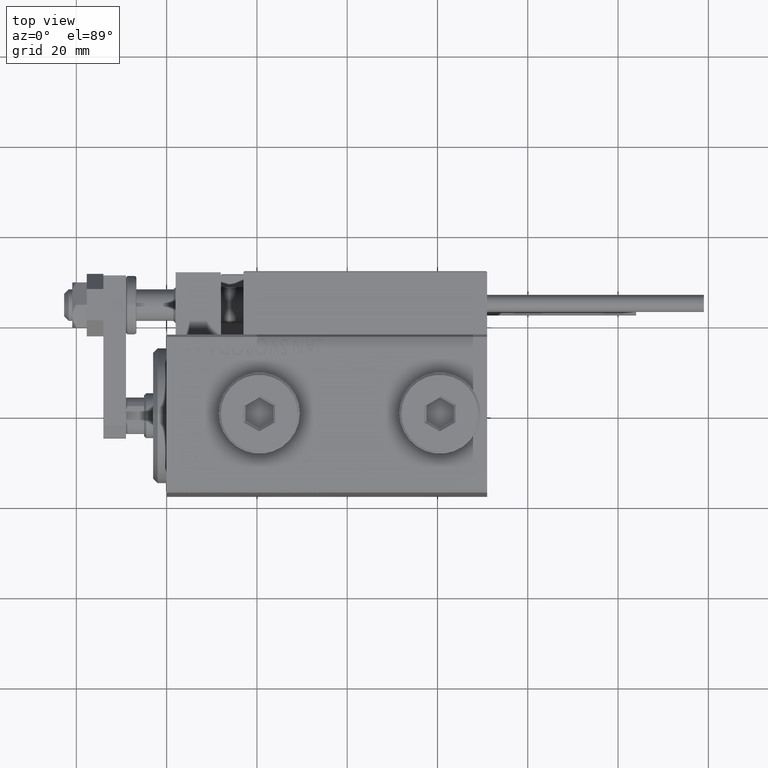
[diagram: clean part render]
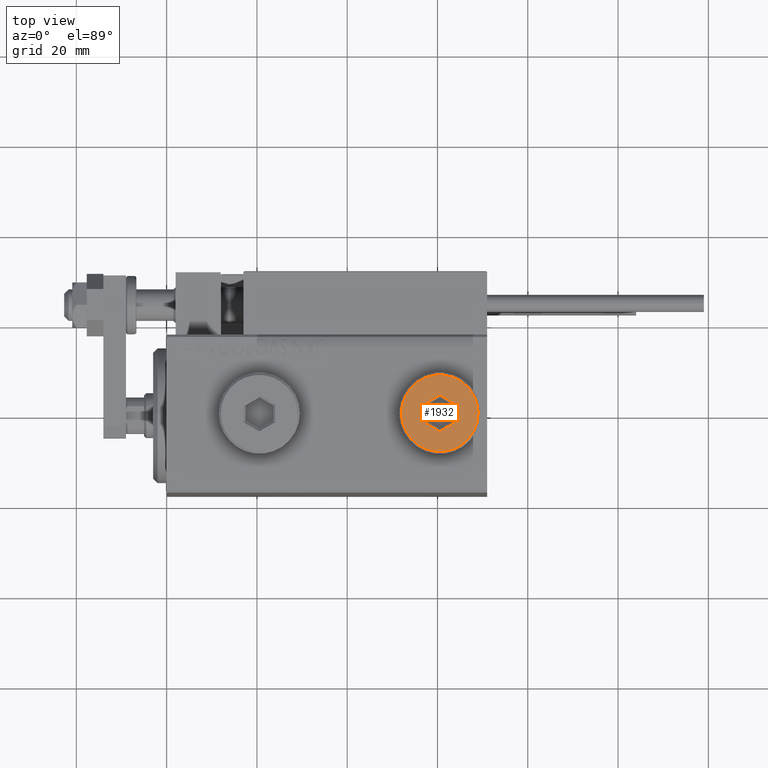
[diagram: same view with one face highlighted and labeled with its STEP entity id]
A machine part, top view. The second image highlights one B-rep face of the part: STEP entity #1932.
In plain terms, the highlighted planar face has unit normal (0, 0, 1).
Its self-contained STEP definition (entity closure, byte-faithful):
#144 = EDGE_CURVE ( 'NONE', #19098, #42155, #45805, .T. ) ;
#889 = VECTOR ( 'NONE', #17063, 1000.000000000000000 ) ;
#1720 = DIRECTION ( 'NONE',  ( -0.8660254037844385966, 0.4999999999999999445, 0.000000000000000000 ) ) ;
#1932 = ADVANCED_FACE ( 'NONE', ( #49858, #21202 ), #26436, .T. ) ;
#4154 = EDGE_CURVE ( 'NONE', #42155, #29084, #8467, .T. ) ;
#4297 = VECTOR ( 'NONE', #51559, 1000.000000000000000 ) ;
#4455 = CARTESIAN_POINT ( 'NONE',  ( 0.000000000000000000, 0.000000000000000000, 5.000000000000000000 ) ) ;
#7854 = EDGE_LOOP ( 'NONE', ( #13670, #17429, #21569, #32295, #31535, #33828 ) ) ;
#8305 = CARTESIAN_POINT ( 'NONE',  ( 3.500000000000006661, -1.732050807568878303, 5.000000000000000000 ) ) ;
#8467 = LINE ( 'NONE', #24659, #8873 ) ;
#8573 = LINE ( 'NONE', #8305, #889 ) ;
#8873 = VECTOR ( 'NONE', #20672, 1000.000000000000000 ) ;
#12289 = VERTEX_POINT ( 'NONE', #18693 ) ;
#13132 = DIRECTION ( 'NONE',  ( 0.8660254037844387076, 0.4999999999999998335, 0.000000000000000000 ) ) ;
#13483 = VECTOR ( 'NONE', #1720, 1000.000000000000114 ) ;
#13670 = ORIENTED_EDGE ( 'NONE', *, *, #4154, .T. ) ;
#14958 = LINE ( 'NONE', #42590, #20431 ) ;
#17063 = DIRECTION ( 'NONE',  ( 0.000000000000000000, -1.000000000000000000, 0.000000000000000000 ) ) ;
#17429 = ORIENTED_EDGE ( 'NONE', *, *, #45280, .T. ) ;
#18636 = CARTESIAN_POINT ( 'NONE',  ( -8.500000000000010658, 0.000000000000000000, 5.000000000000000000 ) ) ;
#18693 = CARTESIAN_POINT ( 'NONE',  ( 3.500000000000006661, 2.020725942163694722, 5.000000000000000000 ) ) ;
#18703 = AXIS2_PLACEMENT_3D ( 'NONE', #4455, #25428, #33146 ) ;
#18958 = AXIS2_PLACEMENT_3D ( 'NONE', #37669, #46600, #42635 ) ;
#19098 = VERTEX_POINT ( 'NONE', #24472 ) ;
#20431 = VECTOR ( 'NONE', #46554, 1000.000000000000000 ) ;
#20672 = DIRECTION ( 'NONE',  ( 0.000000000000000000, 1.000000000000000000, 0.000000000000000000 ) ) ;
#21122 = EDGE_CURVE ( 'NONE', #50742, #19098, #14958, .T. ) ;
#21202 = FACE_OUTER_BOUND ( 'NONE', #51678, .T. ) ;
#21366 = LINE ( 'NONE', #41292, #28033 ) ;
#21569 = ORIENTED_EDGE ( 'NONE', *, *, #41939, .T. ) ;
#22227 = VERTEX_POINT ( 'NONE', #51319 ) ;
#24472 = CARTESIAN_POINT ( 'NONE',  ( -1.006139216460143630E-15, -4.041451884327387667, 5.000000000000000000 ) ) ;
#24659 = CARTESIAN_POINT ( 'NONE',  ( -3.500000000000006661, 1.732050807568878081, 5.000000000000000000 ) ) ;
#25280 = CARTESIAN_POINT ( 'NONE',  ( 3.500000000000006661, -2.020725942163693833, 5.000000000000000000 ) ) ;
#25428 = DIRECTION ( 'NONE',  ( 0.000000000000000000, 0.000000000000000000, 1.000000000000000000 ) ) ;
#26180 = CARTESIAN_POINT ( 'NONE',  ( -3.500000000000006661, 2.020725942163692945, 5.000000000000000000 ) ) ;
#26436 = PLANE ( 'NONE',  #18958 ) ;
#27001 = VERTEX_POINT ( 'NONE', #49421 ) ;
#28033 = VECTOR ( 'NONE', #13132, 1000.000000000000000 ) ;
#28756 = EDGE_CURVE ( 'NONE', #41301, #27001, #39568, .T. ) ;
#28872 = CIRCLE ( 'NONE', #18703, 8.500000000000010658 ) ;
#29084 = VERTEX_POINT ( 'NONE', #26180 ) ;
#30135 = CARTESIAN_POINT ( 'NONE',  ( -3.250000000000003109, -2.165063509461102598, 5.000000000000000000 ) ) ;
#30339 = LINE ( 'NONE', #43075, #4297 ) ;
#30512 = DIRECTION ( 'NONE',  ( 0.000000000000000000, 0.000000000000000000, 1.000000000000000000 ) ) ;
#31085 = AXIS2_PLACEMENT_3D ( 'NONE', #50665, #30512, #46688 ) ;
#31535 = ORIENTED_EDGE ( 'NONE', *, *, #21122, .T. ) ;
#32295 = ORIENTED_EDGE ( 'NONE', *, *, #45881, .T. ) ;
#33146 = DIRECTION ( 'NONE',  ( 1.000000000000000000, 0.000000000000000000, 0.000000000000000000 ) ) ;
#33734 = CARTESIAN_POINT ( 'NONE',  ( -3.500000000000006661, -2.020725942163694278, 5.000000000000000000 ) ) ;
#33828 = ORIENTED_EDGE ( 'NONE', *, *, #144, .T. ) ;
#34600 = ORIENTED_EDGE ( 'NONE', *, *, #28756, .T. ) ;
#37669 = CARTESIAN_POINT ( 'NONE',  ( 0.000000000000000000, 0.000000000000000000, 5.000000000000000000 ) ) ;
#39568 = CIRCLE ( 'NONE', #31085, 8.500000000000010658 ) ;
#41292 = CARTESIAN_POINT ( 'NONE',  ( -0.2500000000000027756, 3.897114317029978459, 5.000000000000000000 ) ) ;
#41301 = VERTEX_POINT ( 'NONE', #18636 ) ;
#41619 = EDGE_CURVE ( 'NONE', #27001, #41301, #28872, .T. ) ;
#41805 = ORIENTED_EDGE ( 'NONE', *, *, #41619, .T. ) ;
#41939 = EDGE_CURVE ( 'NONE', #22227, #12289, #30339, .T. ) ;
#42155 = VERTEX_POINT ( 'NONE', #33734 ) ;
#42590 = CARTESIAN_POINT ( 'NONE',  ( 0.2500000000000027756, -3.897114317029979347, 5.000000000000000000 ) ) ;
#42635 = DIRECTION ( 'NONE',  ( 1.000000000000000000, 0.000000000000000000, -0.000000000000000000 ) ) ;
#43075 = CARTESIAN_POINT ( 'NONE',  ( 3.250000000000003109, 2.165063509461103042, 5.000000000000000000 ) ) ;
#45280 = EDGE_CURVE ( 'NONE', #29084, #22227, #21366, .T. ) ;
#45805 = LINE ( 'NONE', #30135, #13483 ) ;
#45881 = EDGE_CURVE ( 'NONE', #12289, #50742, #8573, .T. ) ;
#46554 = DIRECTION ( 'NONE',  ( -0.8660254037844387076, -0.4999999999999998890, 0.000000000000000000 ) ) ;
#46600 = DIRECTION ( 'NONE',  ( 0.000000000000000000, 0.000000000000000000, 1.000000000000000000 ) ) ;
#46688 = DIRECTION ( 'NONE',  ( 1.000000000000000000, 0.000000000000000000, 0.000000000000000000 ) ) ;
#49421 = CARTESIAN_POINT ( 'NONE',  ( 8.500000000000010658, 1.071565949253934716E-15, 5.000000000000000000 ) ) ;
#49858 = FACE_BOUND ( 'NONE', #7854, .T. ) ;
#50665 = CARTESIAN_POINT ( 'NONE',  ( 0.000000000000000000, 0.000000000000000000, 5.000000000000000000 ) ) ;
#50742 = VERTEX_POINT ( 'NONE', #25280 ) ;
#51319 = CARTESIAN_POINT ( 'NONE',  ( 1.590596867181068292E-15, 4.041451884327386779, 5.000000000000000000 ) ) ;
#51559 = DIRECTION ( 'NONE',  ( 0.8660254037844387076, -0.4999999999999998890, 0.000000000000000000 ) ) ;
#51678 = EDGE_LOOP ( 'NONE', ( #34600, #41805 ) ) ;